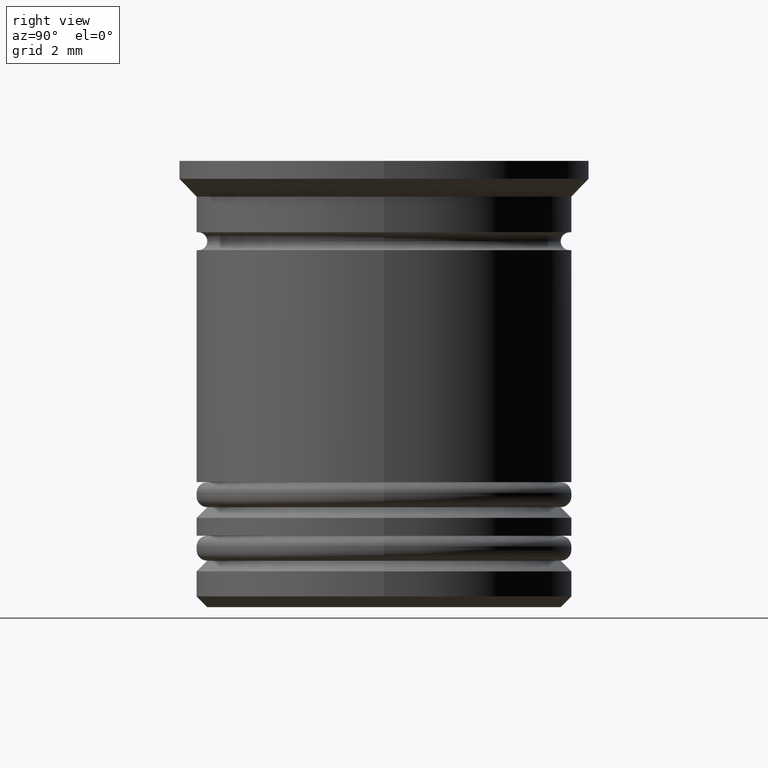
[diagram: clean part render]
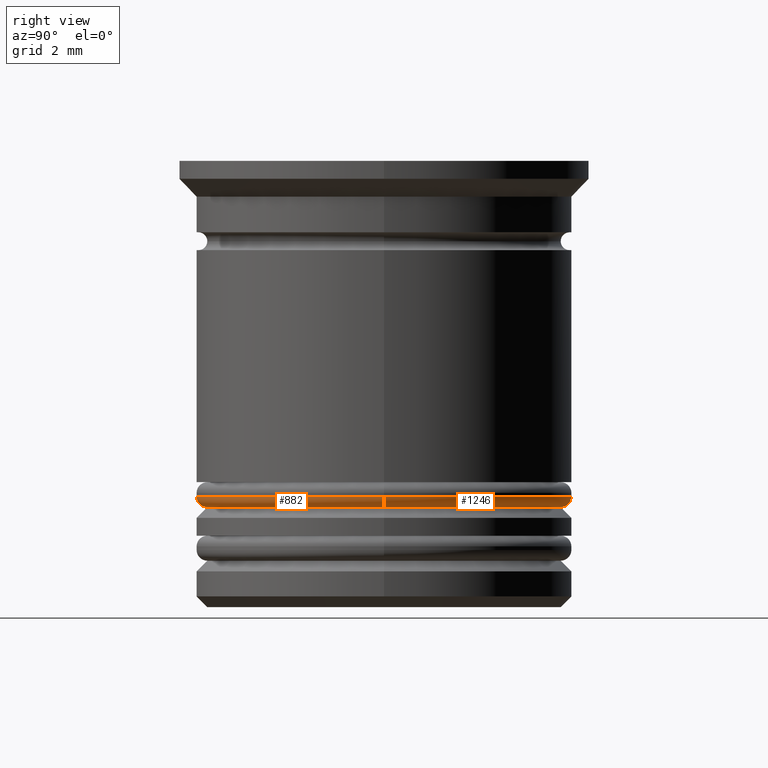
[diagram: same view with one multi-face feature highlighted, each face labeled with its STEP entity id]
A machine part, right view. The highlighted faces form ONE feature: a constant-radius fillet chain: 2 tangent blend faces with common blend radius 0.3 mm. The faces share edges in the B-rep.
Their STEP definitions:
[1] entity #1246 (Torus):
#48 = DIRECTION ( 'NONE',  ( 0.000000000000000000, 0.000000000000000000, -1.000000000000000000 ) ) ;
#97 = DIRECTION ( 'NONE',  ( 1.224646799147353207E-16, 1.000000000000000000, -0.000000000000000000 ) ) ;
#170 = CIRCLE ( 'NONE', #559, 0.2999999999999999334 ) ;
#309 = TOROIDAL_SURFACE ( 'NONE', #602, 4.950000000000000178, 0.2999999999999999889 ) ;
#312 = CARTESIAN_POINT ( 'NONE',  ( -5.250000000000000000, 6.429395695523603167E-16, -9.400000000000007461 ) ) ;
#380 = DIRECTION ( 'NONE',  ( 0.000000000000000000, 0.000000000000000000, 1.000000000000000000 ) ) ;
#383 = CARTESIAN_POINT ( 'NONE',  ( 5.250000000000000000, 0.000000000000000000, -9.400000000000007461 ) ) ;
#436 = CARTESIAN_POINT ( 'NONE',  ( 0.000000000000000000, 0.000000000000000000, -9.400000000000007461 ) ) ;
#523 = DIRECTION ( 'NONE',  ( 0.000000000000000000, -1.000000000000000000, 0.000000000000000000 ) ) ;
#531 = EDGE_CURVE ( 'NONE', #1300, #982, #1446, .T. ) ;
#559 = AXIS2_PLACEMENT_3D ( 'NONE', #1787, #97, #1328 ) ;
#585 = DIRECTION ( 'NONE',  ( 1.000000000000000000, 0.000000000000000000, 0.000000000000000000 ) ) ;
#590 = VERTEX_POINT ( 'NONE', #1716 ) ;
#602 = AXIS2_PLACEMENT_3D ( 'NONE', #436, #1516, #1037 ) ;
#669 = EDGE_CURVE ( 'NONE', #982, #864, #765, .T. ) ;
#677 = CARTESIAN_POINT ( 'NONE',  ( 4.950000000000000178, 0.000000000000000000, -9.400000000000007461 ) ) ;
#765 = CIRCLE ( 'NONE', #1640, 5.250000000000000000 ) ;
#796 = AXIS2_PLACEMENT_3D ( 'NONE', #1332, #1802, #585 ) ;
#864 = VERTEX_POINT ( 'NONE', #312 ) ;
#982 = VERTEX_POINT ( 'NONE', #383 ) ;
#995 = DIRECTION ( 'NONE',  ( 1.000000000000000000, 0.000000000000000000, 0.000000000000000000 ) ) ;
#1037 = DIRECTION ( 'NONE',  ( 1.000000000000000000, 0.000000000000000000, 0.000000000000000000 ) ) ;
#1074 = CARTESIAN_POINT ( 'NONE',  ( 4.950000000000000178, 0.000000000000000000, -9.700000000000006395 ) ) ;
#1177 = EDGE_CURVE ( 'NONE', #590, #1300, #1669, .T. ) ;
#1242 = EDGE_LOOP ( 'NONE', ( #1689, #1784, #1580, #1255 ) ) ;
#1246 = ADVANCED_FACE ( 'NONE', ( #1529 ), #309, .T. ) ;
#1255 = ORIENTED_EDGE ( 'NONE', *, *, #531, .F. ) ;
#1300 = VERTEX_POINT ( 'NONE', #1074 ) ;
#1328 = DIRECTION ( 'NONE',  ( -1.000000000000000000, 1.224646799147353207E-16, 0.000000000000000000 ) ) ;
#1332 = CARTESIAN_POINT ( 'NONE',  ( 0.000000000000000000, 0.000000000000000000, -9.700000000000006395 ) ) ;
#1446 = CIRCLE ( 'NONE', #1801, 0.2999999999999999334 ) ;
#1516 = DIRECTION ( 'NONE',  ( 0.000000000000000000, 0.000000000000000000, 1.000000000000000000 ) ) ;
#1529 = FACE_OUTER_BOUND ( 'NONE', #1242, .T. ) ;
#1580 = ORIENTED_EDGE ( 'NONE', *, *, #669, .F. ) ;
#1640 = AXIS2_PLACEMENT_3D ( 'NONE', #1761, #380, #995 ) ;
#1669 = CIRCLE ( 'NONE', #796, 4.950000000000000178 ) ;
#1689 = ORIENTED_EDGE ( 'NONE', *, *, #1177, .F. ) ;
#1716 = CARTESIAN_POINT ( 'NONE',  ( -4.950000000000000178, 6.245698675651501825E-16, -9.700000000000006395 ) ) ;
#1761 = CARTESIAN_POINT ( 'NONE',  ( 0.000000000000000000, 0.000000000000000000, -9.400000000000007461 ) ) ;
#1784 = ORIENTED_EDGE ( 'NONE', *, *, #1861, .T. ) ;
#1787 = CARTESIAN_POINT ( 'NONE',  ( -4.950000000000000178, 6.062001655779398511E-16, -9.400000000000007461 ) ) ;
#1801 = AXIS2_PLACEMENT_3D ( 'NONE', #677, #523, #48 ) ;
#1802 = DIRECTION ( 'NONE',  ( -0.000000000000000000, -0.000000000000000000, -1.000000000000000000 ) ) ;
#1861 = EDGE_CURVE ( 'NONE', #590, #864, #170, .T. ) ;
[2] entity #882 (Torus):
#48 = DIRECTION ( 'NONE',  ( 0.000000000000000000, 0.000000000000000000, -1.000000000000000000 ) ) ;
#58 = CIRCLE ( 'NONE', #574, 4.950000000000000178 ) ;
#97 = DIRECTION ( 'NONE',  ( 1.224646799147353207E-16, 1.000000000000000000, -0.000000000000000000 ) ) ;
#170 = CIRCLE ( 'NONE', #559, 0.2999999999999999334 ) ;
#198 = ORIENTED_EDGE ( 'NONE', *, *, #531, .T. ) ;
#204 = CIRCLE ( 'NONE', #1528, 5.250000000000000000 ) ;
#312 = CARTESIAN_POINT ( 'NONE',  ( -5.250000000000000000, 6.429395695523603167E-16, -9.400000000000007461 ) ) ;
#383 = CARTESIAN_POINT ( 'NONE',  ( 5.250000000000000000, 0.000000000000000000, -9.400000000000007461 ) ) ;
#409 = DIRECTION ( 'NONE',  ( 1.000000000000000000, 0.000000000000000000, 0.000000000000000000 ) ) ;
#430 = CARTESIAN_POINT ( 'NONE',  ( 0.000000000000000000, 0.000000000000000000, -9.400000000000007461 ) ) ;
#462 = ORIENTED_EDGE ( 'NONE', *, *, #1795, .F. ) ;
#523 = DIRECTION ( 'NONE',  ( 0.000000000000000000, -1.000000000000000000, 0.000000000000000000 ) ) ;
#531 = EDGE_CURVE ( 'NONE', #1300, #982, #1446, .T. ) ;
#559 = AXIS2_PLACEMENT_3D ( 'NONE', #1787, #97, #1328 ) ;
#574 = AXIS2_PLACEMENT_3D ( 'NONE', #1311, #1015, #1770 ) ;
#590 = VERTEX_POINT ( 'NONE', #1716 ) ;
#637 = EDGE_CURVE ( 'NONE', #1300, #590, #58, .T. ) ;
#677 = CARTESIAN_POINT ( 'NONE',  ( 4.950000000000000178, 0.000000000000000000, -9.400000000000007461 ) ) ;
#766 = FACE_OUTER_BOUND ( 'NONE', #792, .T. ) ;
#792 = EDGE_LOOP ( 'NONE', ( #1981, #1804, #198, #462 ) ) ;
#831 = AXIS2_PLACEMENT_3D ( 'NONE', #1565, #1236, #1412 ) ;
#864 = VERTEX_POINT ( 'NONE', #312 ) ;
#882 = ADVANCED_FACE ( 'NONE', ( #766 ), #1026, .T. ) ;
#982 = VERTEX_POINT ( 'NONE', #383 ) ;
#1015 = DIRECTION ( 'NONE',  ( -0.000000000000000000, -0.000000000000000000, -1.000000000000000000 ) ) ;
#1026 = TOROIDAL_SURFACE ( 'NONE', #831, 4.950000000000000178, 0.2999999999999999889 ) ;
#1074 = CARTESIAN_POINT ( 'NONE',  ( 4.950000000000000178, 0.000000000000000000, -9.700000000000006395 ) ) ;
#1236 = DIRECTION ( 'NONE',  ( 0.000000000000000000, 0.000000000000000000, 1.000000000000000000 ) ) ;
#1300 = VERTEX_POINT ( 'NONE', #1074 ) ;
#1311 = CARTESIAN_POINT ( 'NONE',  ( 0.000000000000000000, 0.000000000000000000, -9.700000000000006395 ) ) ;
#1328 = DIRECTION ( 'NONE',  ( -1.000000000000000000, 1.224646799147353207E-16, 0.000000000000000000 ) ) ;
#1412 = DIRECTION ( 'NONE',  ( 1.000000000000000000, 0.000000000000000000, 0.000000000000000000 ) ) ;
#1446 = CIRCLE ( 'NONE', #1801, 0.2999999999999999334 ) ;
#1528 = AXIS2_PLACEMENT_3D ( 'NONE', #430, #1664, #409 ) ;
#1565 = CARTESIAN_POINT ( 'NONE',  ( 0.000000000000000000, 0.000000000000000000, -9.400000000000007461 ) ) ;
#1664 = DIRECTION ( 'NONE',  ( 0.000000000000000000, 0.000000000000000000, 1.000000000000000000 ) ) ;
#1716 = CARTESIAN_POINT ( 'NONE',  ( -4.950000000000000178, 6.245698675651501825E-16, -9.700000000000006395 ) ) ;
#1770 = DIRECTION ( 'NONE',  ( 1.000000000000000000, 0.000000000000000000, 0.000000000000000000 ) ) ;
#1787 = CARTESIAN_POINT ( 'NONE',  ( -4.950000000000000178, 6.062001655779398511E-16, -9.400000000000007461 ) ) ;
#1795 = EDGE_CURVE ( 'NONE', #864, #982, #204, .T. ) ;
#1801 = AXIS2_PLACEMENT_3D ( 'NONE', #677, #523, #48 ) ;
#1804 = ORIENTED_EDGE ( 'NONE', *, *, #637, .F. ) ;
#1861 = EDGE_CURVE ( 'NONE', #590, #864, #170, .T. ) ;
#1981 = ORIENTED_EDGE ( 'NONE', *, *, #1861, .F. ) ;